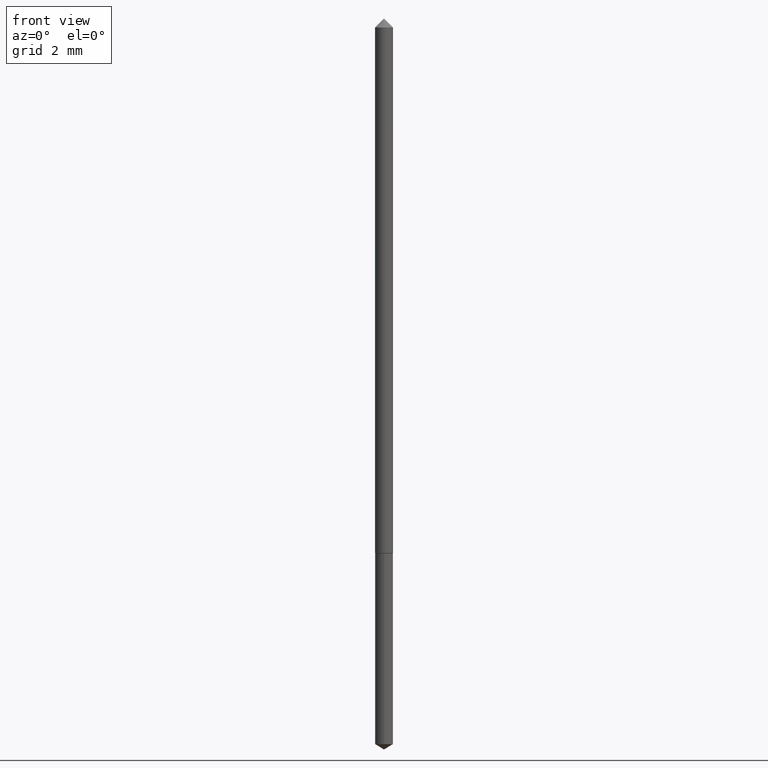
[diagram: clean part render]
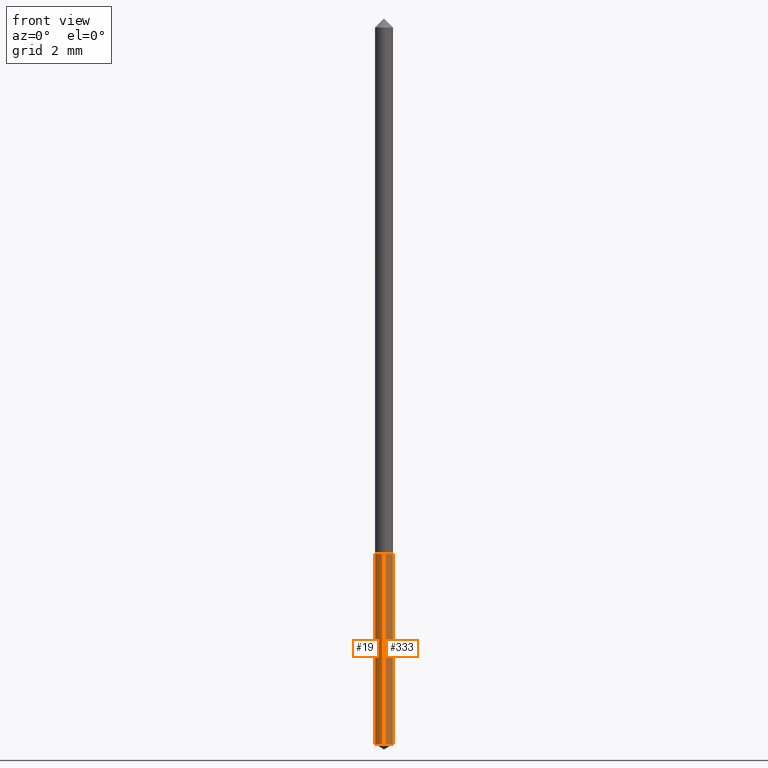
[diagram: same view with one multi-face feature highlighted, each face labeled with its STEP entity id]
A machine part, front view. The highlighted faces form ONE feature: a constant-radius fillet chain: 2 tangent blend faces with common blend radius 0.2667 mm. The faces share edges in the B-rep.
Their STEP definitions:
[1] entity #19 (Cylinder):
#9 = VERTEX_POINT ( 'NONE', #11 ) ;
#11 = CARTESIAN_POINT ( 'NONE',  ( 7.460698725483177409E-17, 0.01049999999999697009, -0.8686909635002105778 ) ) ;
#19 = ADVANCED_FACE ( 'NONE', ( #205 ), #316, .T. ) ;
#40 = VECTOR ( 'NONE', #130, 39.37007874015748143 ) ;
#49 = ORIENTED_EDGE ( 'NONE', *, *, #289, .F. ) ;
#53 = CARTESIAN_POINT ( 'NONE',  ( 7.460698725483178642E-17, 0.01049999999999774551, -0.6459999999999999076 ) ) ;
#69 = ORIENTED_EDGE ( 'NONE', *, *, #346, .T. ) ;
#71 = CIRCLE ( 'NONE', #185, 0.01050000000000000239 ) ;
#76 = DIRECTION ( 'NONE',  ( -6.982962677686265133E-15, -1.000000000000000000, 0.000000000000000000 ) ) ;
#78 = LINE ( 'NONE', #191, #296 ) ;
#83 = DIRECTION ( 'NONE',  ( -2.445416080795089318E-29, 3.491556844602635830E-15, 1.000000000000000000 ) ) ;
#88 = CARTESIAN_POINT ( 'NONE',  ( 1.579772848795597946E-29, -2.255496944892671358E-15, -0.6459999999999999076 ) ) ;
#90 = DIRECTION ( 'NONE',  ( -6.982962677686265133E-15, -1.000000000000000000, 0.000000000000000000 ) ) ;
#120 = VERTEX_POINT ( 'NONE', #278 ) ;
#130 = DIRECTION ( 'NONE',  ( -2.445416080795089318E-29, 3.491556844602635830E-15, 1.000000000000000000 ) ) ;
#134 = LINE ( 'NONE', #188, #40 ) ;
#172 = CIRCLE ( 'NONE', #223, 0.01050000000000000239 ) ;
#177 = EDGE_CURVE ( 'NONE', #234, #120, #172, .T. ) ;
#180 = ORIENTED_EDGE ( 'NONE', *, *, #227, .T. ) ;
#185 = AXIS2_PLACEMENT_3D ( 'NONE', #230, #344, #76 ) ;
#188 = CARTESIAN_POINT ( 'NONE',  ( -7.332110811568999810E-17, -0.01050000000000225753, -0.6459999999999999076 ) ) ;
#191 = CARTESIAN_POINT ( 'NONE',  ( 7.460698725482631370E-17, 0.01049999999999774551, -0.6459999999999999076 ) ) ;
#195 = DIRECTION ( 'NONE',  ( -2.445416080795089318E-29, 3.491556844602636224E-15, 1.000000000000000000 ) ) ;
#205 = FACE_OUTER_BOUND ( 'NONE', #266, .T. ) ;
#223 = AXIS2_PLACEMENT_3D ( 'NONE', #337, #195, #90 ) ;
#227 = EDGE_CURVE ( 'NONE', #9, #323, #71, .T. ) ;
#230 = CARTESIAN_POINT ( 'NONE',  ( 2.124344911986765447E-29, -3.033035102732987870E-15, -0.8686909635002105778 ) ) ;
#234 = VERTEX_POINT ( 'NONE', #53 ) ;
#266 = EDGE_LOOP ( 'NONE', ( #49, #180, #69, #356 ) ) ;
#269 = DIRECTION ( 'NONE',  ( -2.445416080795089318E-29, 3.491556844602636224E-15, 1.000000000000000000 ) ) ;
#278 = CARTESIAN_POINT ( 'NONE',  ( -7.332110811568999810E-17, -0.01050000000000225753, -0.6459999999999999076 ) ) ;
#289 = EDGE_CURVE ( 'NONE', #9, #234, #78, .T. ) ;
#296 = VECTOR ( 'NONE', #83, 39.37007874015748143 ) ;
#316 = CYLINDRICAL_SURFACE ( 'NONE', #350, 0.01050000000000000239 ) ;
#322 = DIRECTION ( 'NONE',  ( -6.982962677686265133E-15, -1.000000000000000000, 0.000000000000000000 ) ) ;
#323 = VERTEX_POINT ( 'NONE', #326 ) ;
#326 = CARTESIAN_POINT ( 'NONE',  ( -7.332110811568456235E-17, -0.01050000000000303468, -0.8686909635002105778 ) ) ;
#337 = CARTESIAN_POINT ( 'NONE',  ( 1.579772848795597946E-29, -2.255496944892671358E-15, -0.6459999999999999076 ) ) ;
#344 = DIRECTION ( 'NONE',  ( -2.445416080795089318E-29, 3.491556844602636224E-15, 1.000000000000000000 ) ) ;
#346 = EDGE_CURVE ( 'NONE', #323, #120, #134, .T. ) ;
#350 = AXIS2_PLACEMENT_3D ( 'NONE', #88, #269, #322 ) ;
#356 = ORIENTED_EDGE ( 'NONE', *, *, #177, .F. ) ;
[2] entity #333 (Cylinder):
#9 = VERTEX_POINT ( 'NONE', #11 ) ;
#11 = CARTESIAN_POINT ( 'NONE',  ( 7.460698725483177409E-17, 0.01049999999999697009, -0.8686909635002105778 ) ) ;
#22 = CIRCLE ( 'NONE', #270, 0.01050000000000000239 ) ;
#32 = AXIS2_PLACEMENT_3D ( 'NONE', #338, #82, #196 ) ;
#40 = VECTOR ( 'NONE', #130, 39.37007874015748143 ) ;
#52 = DIRECTION ( 'NONE',  ( -6.982962677686265133E-15, -1.000000000000000000, 0.000000000000000000 ) ) ;
#53 = CARTESIAN_POINT ( 'NONE',  ( 7.460698725483178642E-17, 0.01049999999999774551, -0.6459999999999999076 ) ) ;
#54 = CARTESIAN_POINT ( 'NONE',  ( 2.124344911986765447E-29, -3.033035102732987870E-15, -0.8686909635002105778 ) ) ;
#78 = LINE ( 'NONE', #191, #296 ) ;
#82 = DIRECTION ( 'NONE',  ( -2.445416080795089318E-29, 3.491556844602636224E-15, 1.000000000000000000 ) ) ;
#83 = DIRECTION ( 'NONE',  ( -2.445416080795089318E-29, 3.491556844602635830E-15, 1.000000000000000000 ) ) ;
#108 = CARTESIAN_POINT ( 'NONE',  ( 1.579772848795597946E-29, -2.255496944892671358E-15, -0.6459999999999999076 ) ) ;
#113 = DIRECTION ( 'NONE',  ( -2.445416080795089318E-29, 3.491556844602636224E-15, 1.000000000000000000 ) ) ;
#120 = VERTEX_POINT ( 'NONE', #278 ) ;
#122 = CIRCLE ( 'NONE', #253, 0.01050000000000000239 ) ;
#130 = DIRECTION ( 'NONE',  ( -2.445416080795089318E-29, 3.491556844602635830E-15, 1.000000000000000000 ) ) ;
#134 = LINE ( 'NONE', #188, #40 ) ;
#157 = EDGE_CURVE ( 'NONE', #323, #9, #122, .T. ) ;
#183 = FACE_OUTER_BOUND ( 'NONE', #210, .T. ) ;
#184 = EDGE_CURVE ( 'NONE', #120, #234, #22, .T. ) ;
#188 = CARTESIAN_POINT ( 'NONE',  ( -7.332110811568999810E-17, -0.01050000000000225753, -0.6459999999999999076 ) ) ;
#191 = CARTESIAN_POINT ( 'NONE',  ( 7.460698725482631370E-17, 0.01049999999999774551, -0.6459999999999999076 ) ) ;
#196 = DIRECTION ( 'NONE',  ( -6.982962677686265133E-15, -1.000000000000000000, 0.000000000000000000 ) ) ;
#210 = EDGE_LOOP ( 'NONE', ( #319, #238, #292, #247 ) ) ;
#231 = DIRECTION ( 'NONE',  ( -6.982962677686265133E-15, -1.000000000000000000, 0.000000000000000000 ) ) ;
#234 = VERTEX_POINT ( 'NONE', #53 ) ;
#238 = ORIENTED_EDGE ( 'NONE', *, *, #289, .T. ) ;
#247 = ORIENTED_EDGE ( 'NONE', *, *, #346, .F. ) ;
#252 = CYLINDRICAL_SURFACE ( 'NONE', #32, 0.01050000000000000239 ) ;
#253 = AXIS2_PLACEMENT_3D ( 'NONE', #54, #113, #231 ) ;
#270 = AXIS2_PLACEMENT_3D ( 'NONE', #108, #340, #52 ) ;
#278 = CARTESIAN_POINT ( 'NONE',  ( -7.332110811568999810E-17, -0.01050000000000225753, -0.6459999999999999076 ) ) ;
#289 = EDGE_CURVE ( 'NONE', #9, #234, #78, .T. ) ;
#292 = ORIENTED_EDGE ( 'NONE', *, *, #184, .F. ) ;
#296 = VECTOR ( 'NONE', #83, 39.37007874015748143 ) ;
#319 = ORIENTED_EDGE ( 'NONE', *, *, #157, .T. ) ;
#323 = VERTEX_POINT ( 'NONE', #326 ) ;
#326 = CARTESIAN_POINT ( 'NONE',  ( -7.332110811568456235E-17, -0.01050000000000303468, -0.8686909635002105778 ) ) ;
#333 = ADVANCED_FACE ( 'NONE', ( #183 ), #252, .T. ) ;
#338 = CARTESIAN_POINT ( 'NONE',  ( 1.579772848795597946E-29, -2.255496944892671358E-15, -0.6459999999999999076 ) ) ;
#340 = DIRECTION ( 'NONE',  ( -2.445416080795089318E-29, 3.491556844602636224E-15, 1.000000000000000000 ) ) ;
#346 = EDGE_CURVE ( 'NONE', #323, #120, #134, .T. ) ;